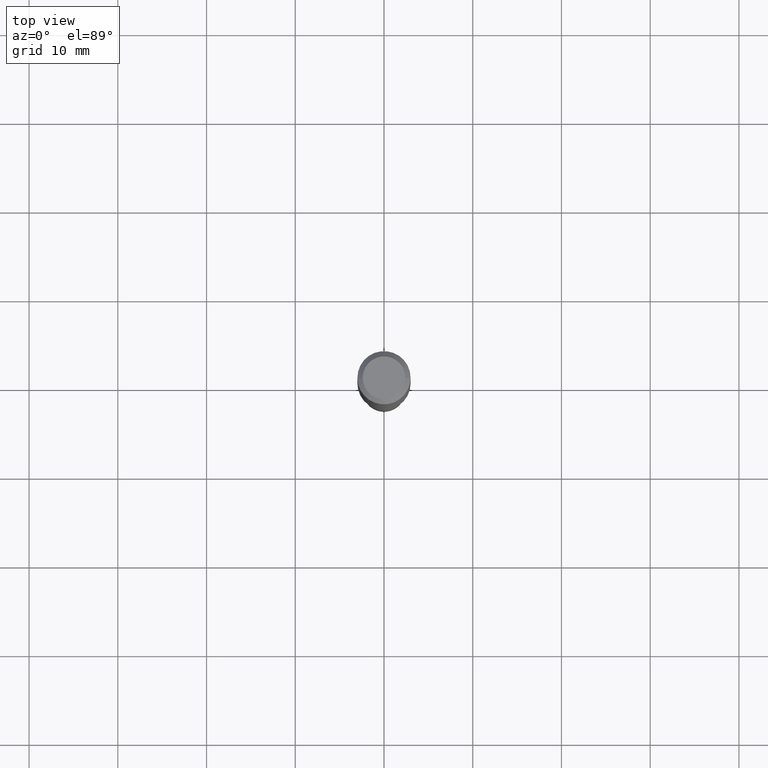
[diagram: clean part render]
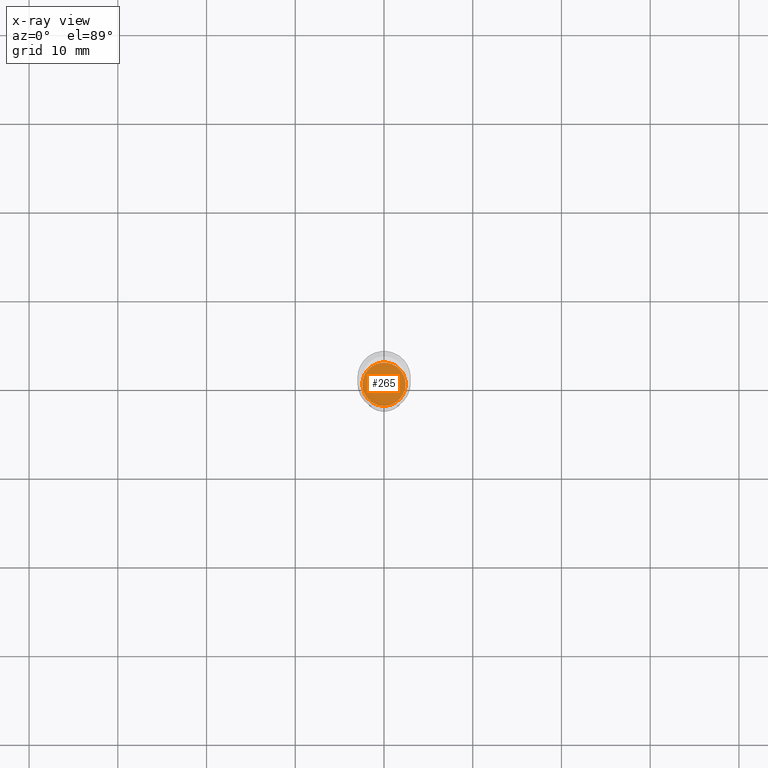
[diagram: x-ray — body ghosted, one internal face saturated and labeled with its STEP entity id]
A machine part, top view, then the same camera in x-ray: the body is ghosted and one INTERNAL B-rep face — a face not visible from any outside direction — is saturated and labeled: STEP entity #265.
In plain terms, the highlighted planar face has unit normal (-0, 0, 1).
Its self-contained STEP definition (entity closure, byte-faithful):
#31 = DIRECTION ( 'NONE',  ( 1.000000000000000000, -6.982962677686269866E-15, 0.000000000000000000 ) ) ;
#33 = DIRECTION ( 'NONE',  ( 1.000000000000000000, -6.982962677686269866E-15, 0.000000000000000000 ) ) ;
#37 = CARTESIAN_POINT ( 'NONE',  ( 4.130152266766077627E-29, -5.896762833172189046E-15, -1.688900000000000068 ) ) ;
#53 = DIRECTION ( 'NONE',  ( 1.000000000000000000, -6.982962677686265922E-15, 4.876176775795935793E-29 ) ) ;
#78 = FACE_OUTER_BOUND ( 'NONE', #199, .T. ) ;
#95 = AXIS2_PLACEMENT_3D ( 'NONE', #37, #370, #31 ) ;
#125 = CIRCLE ( 'NONE', #95, 0.09594999999999997975 ) ;
#136 = ORIENTED_EDGE ( 'NONE', *, *, #149, .F. ) ;
#142 = CARTESIAN_POINT ( 'NONE',  ( 0.09594999999999997975, -6.566778102096186571E-15, -1.688900000000000068 ) ) ;
#149 = EDGE_CURVE ( 'NONE', #463, #193, #125, .T. ) ;
#158 = AXIS2_PLACEMENT_3D ( 'NONE', #304, #188, #53 ) ;
#185 = CARTESIAN_POINT ( 'NONE',  ( 4.130152266766077627E-29, -5.896762833172189046E-15, -1.688900000000000068 ) ) ;
#188 = DIRECTION ( 'NONE',  ( -2.438088387897960049E-29, 3.491481338843145188E-15, 1.000000000000000000 ) ) ;
#193 = VERTEX_POINT ( 'NONE', #142 ) ;
#199 = EDGE_LOOP ( 'NONE', ( #319, #136 ) ) ;
#217 = AXIS2_PLACEMENT_3D ( 'NONE', #185, #375, #33 ) ;
#240 = EDGE_CURVE ( 'NONE', #193, #463, #251, .T. ) ;
#251 = CIRCLE ( 'NONE', #217, 0.09594999999999997975 ) ;
#265 = ADVANCED_FACE ( 'NONE', ( #78 ), #427, .F. ) ;
#304 = CARTESIAN_POINT ( 'NONE',  ( 4.130152266766077627E-29, -5.896762833172189046E-15, -1.688900000000000068 ) ) ;
#319 = ORIENTED_EDGE ( 'NONE', *, *, #240, .F. ) ;
#370 = DIRECTION ( 'NONE',  ( -2.445468806185136597E-29, 3.491481338843145583E-15, 1.000000000000000000 ) ) ;
#375 = DIRECTION ( 'NONE',  ( -2.445468806185136597E-29, 3.491481338843145583E-15, 1.000000000000000000 ) ) ;
#427 = PLANE ( 'NONE',  #158 ) ;
#463 = VERTEX_POINT ( 'NONE', #469 ) ;
#469 = CARTESIAN_POINT ( 'NONE',  ( -0.09594999999999997975, -5.212347851036261861E-15, -1.688900000000000068 ) ) ;